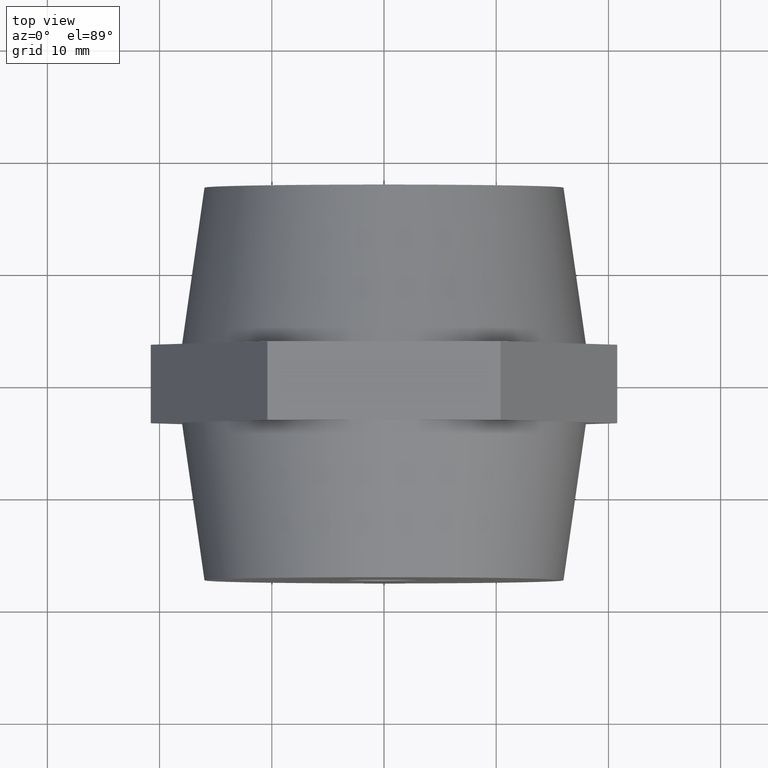
[diagram: clean part render]
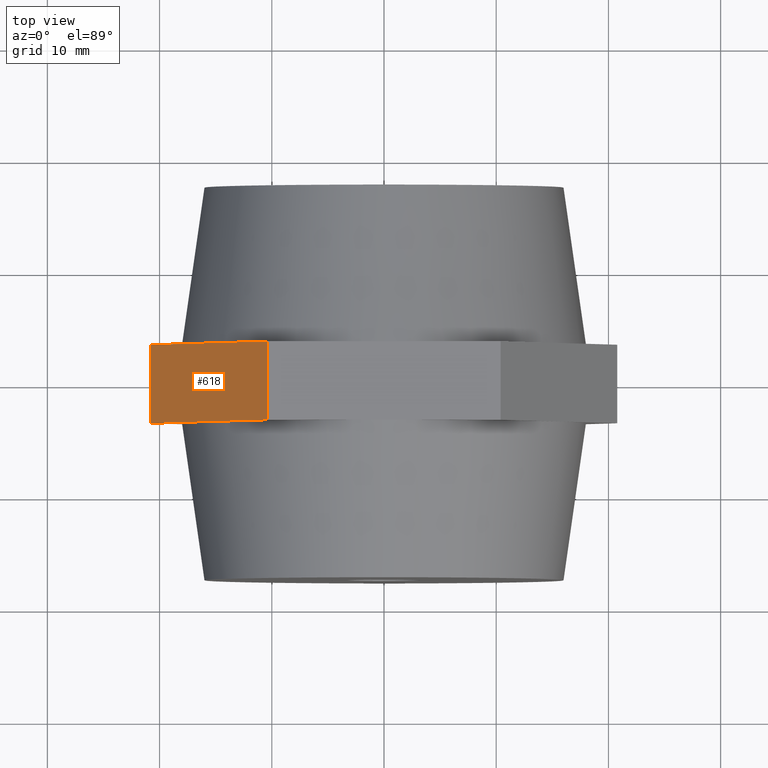
[diagram: same view with one face highlighted and labeled with its STEP entity id]
A machine part, top view. The second image highlights one B-rep face of the part: STEP entity #618.
In plain terms, the highlighted planar face has unit normal (0.866, 0, -0.5).
Its self-contained STEP definition (entity closure, byte-faithful):
#50 = CARTESIAN_POINT ( 'NONE',  ( -15.58845726811990100, 3.500000000000000000, 9.000000000000000000 ) ) ;
#90 = EDGE_CURVE ( 'NONE', #3490, #468, #1987, .T. ) ;
#186 = DIRECTION ( 'NONE',  ( 0.8660254037844387100, 0.0000000000000000000, -0.4999999999999998900 ) ) ;
#188 = VECTOR ( 'NONE', #2449, 1000.000000000000000 ) ;
#302 = CARTESIAN_POINT ( 'NONE',  ( -15.58845726811990100, -3.500000000000000000, 9.000000000000000000 ) ) ;
#311 = CARTESIAN_POINT ( 'NONE',  ( -20.78460969082655300, 3.500000000000000000, 3.489160901696160500E-015 ) ) ;
#468 = VERTEX_POINT ( 'NONE', #1935 ) ;
#514 = DIRECTION ( 'NONE',  ( 0.4999999999999998900, 0.0000000000000000000, 0.8660254037844387100 ) ) ;
#529 = PLANE ( 'NONE',  #3412 ) ;
#554 = VECTOR ( 'NONE', #2840, 1000.000000000000000 ) ;
#565 = DIRECTION ( 'NONE',  ( 0.4999999999999998900, 0.0000000000000000000, 0.8660254037844387100 ) ) ;
#618 = ADVANCED_FACE ( 'NONE', ( #1665 ), #529, .F. ) ;
#778 = CARTESIAN_POINT ( 'NONE',  ( -10.39230484541326000, -3.500000000000000000, 18.00000000000000000 ) ) ;
#787 = VERTEX_POINT ( 'NONE', #778 ) ;
#836 = CARTESIAN_POINT ( 'NONE',  ( -20.78460969082655300, 3.500000000000000000, 3.489160901696160500E-015 ) ) ;
#880 = CARTESIAN_POINT ( 'NONE',  ( -20.78460969082655300, -3.500000000000000000, 3.489160901696160500E-015 ) ) ;
#882 = EDGE_CURVE ( 'NONE', #3490, #2378, #2270, .T. ) ;
#905 = ORIENTED_EDGE ( 'NONE', *, *, #2688, .F. ) ;
#1008 = VERTEX_POINT ( 'NONE', #302 ) ;
#1069 = CARTESIAN_POINT ( 'NONE',  ( -10.39230484541326000, 3.500000000000000000, 18.00000000000000000 ) ) ;
#1166 = LINE ( 'NONE', #3537, #2553 ) ;
#1323 = LINE ( 'NONE', #1069, #2809 ) ;
#1419 = DIRECTION ( 'NONE',  ( -0.4999999999999998900, 0.0000000000000000000, -0.8660254037844387100 ) ) ;
#1479 = VECTOR ( 'NONE', #514, 1000.000000000000000 ) ;
#1491 = EDGE_CURVE ( 'NONE', #3675, #787, #1323, .T. ) ;
#1665 = FACE_OUTER_BOUND ( 'NONE', #2291, .T. ) ;
#1727 = CARTESIAN_POINT ( 'NONE',  ( -10.39230484541326000, 3.500000000000000000, 18.00000000000000000 ) ) ;
#1844 = ORIENTED_EDGE ( 'NONE', *, *, #3083, .T. ) ;
#1935 = CARTESIAN_POINT ( 'NONE',  ( -20.78460969082655300, -3.500000000000000000, 3.489160901696160500E-015 ) ) ;
#1987 = LINE ( 'NONE', #2236, #554 ) ;
#2054 = DIRECTION ( 'NONE',  ( 0.4999999999999998900, 0.0000000000000000000, 0.8660254037844387100 ) ) ;
#2236 = CARTESIAN_POINT ( 'NONE',  ( -20.78460969082655300, 3.500000000000000000, 3.489160901696160500E-015 ) ) ;
#2268 = EDGE_CURVE ( 'NONE', #1008, #787, #3130, .T. ) ;
#2270 = LINE ( 'NONE', #836, #1479 ) ;
#2291 = EDGE_LOOP ( 'NONE', ( #1844, #3654, #3747, #905, #3405, #2470 ) ) ;
#2378 = VERTEX_POINT ( 'NONE', #50 ) ;
#2449 = DIRECTION ( 'NONE',  ( 0.4999999999999998900, 0.0000000000000000000, 0.8660254037844387100 ) ) ;
#2470 = ORIENTED_EDGE ( 'NONE', *, *, #90, .T. ) ;
#2553 = VECTOR ( 'NONE', #2054, 1000.000000000000000 ) ;
#2642 = CARTESIAN_POINT ( 'NONE',  ( -20.78460969082655300, 3.500000000000000000, 3.489160901696160500E-015 ) ) ;
#2688 = EDGE_CURVE ( 'NONE', #2378, #3675, #3683, .T. ) ;
#2809 = VECTOR ( 'NONE', #3448, 1000.000000000000000 ) ;
#2840 = DIRECTION ( 'NONE',  ( 0.0000000000000000000, -1.000000000000000000, 0.0000000000000000000 ) ) ;
#3046 = VECTOR ( 'NONE', #565, 1000.000000000000000 ) ;
#3083 = EDGE_CURVE ( 'NONE', #468, #1008, #1166, .T. ) ;
#3130 = LINE ( 'NONE', #880, #3046 ) ;
#3405 = ORIENTED_EDGE ( 'NONE', *, *, #882, .F. ) ;
#3412 = AXIS2_PLACEMENT_3D ( 'NONE', #2642, #186, #1419 ) ;
#3448 = DIRECTION ( 'NONE',  ( 0.0000000000000000000, -1.000000000000000000, 0.0000000000000000000 ) ) ;
#3490 = VERTEX_POINT ( 'NONE', #3751 ) ;
#3537 = CARTESIAN_POINT ( 'NONE',  ( -20.78460969082655300, -3.500000000000000000, 3.489160901696160500E-015 ) ) ;
#3654 = ORIENTED_EDGE ( 'NONE', *, *, #2268, .T. ) ;
#3675 = VERTEX_POINT ( 'NONE', #1727 ) ;
#3683 = LINE ( 'NONE', #311, #188 ) ;
#3747 = ORIENTED_EDGE ( 'NONE', *, *, #1491, .F. ) ;
#3751 = CARTESIAN_POINT ( 'NONE',  ( -20.78460969082655300, 3.500000000000000000, 3.489160901696160500E-015 ) ) ;